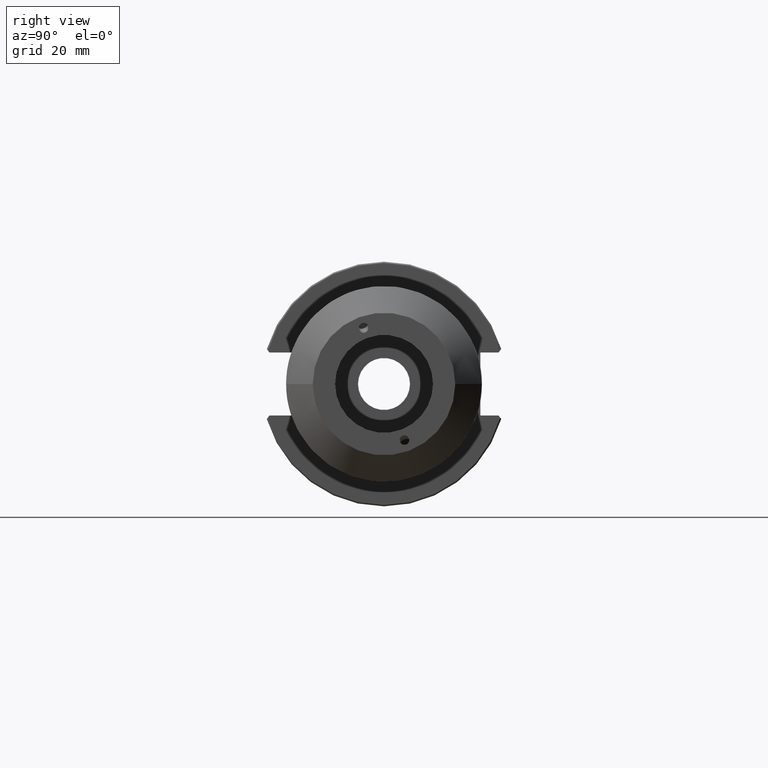
[diagram: clean part render]
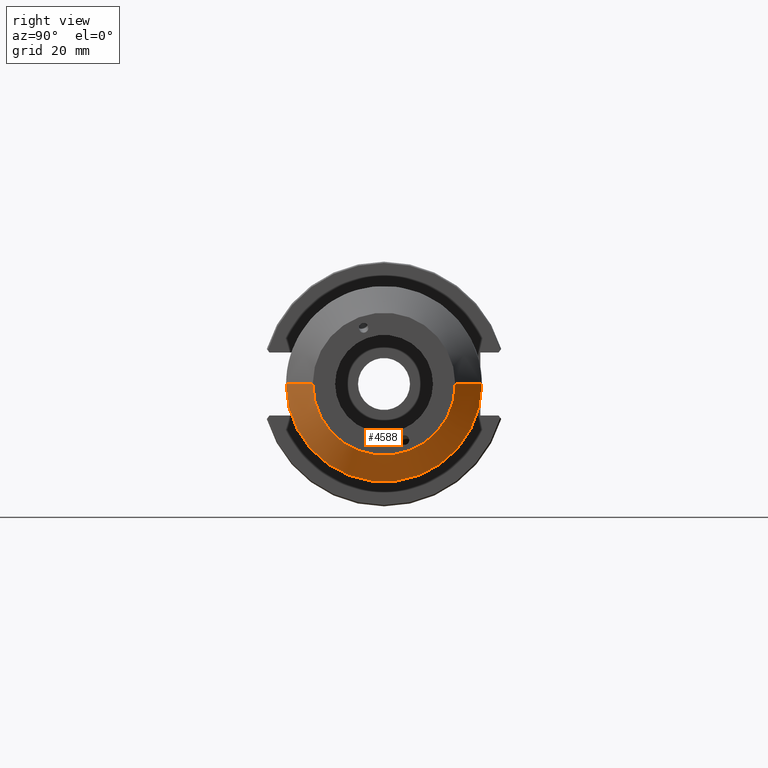
[diagram: same view with one face highlighted and labeled with its STEP entity id]
A machine part, right view. The second image highlights one B-rep face of the part: STEP entity #4588.
In plain terms, the highlighted conical surface has half-angle 45 deg.
Its self-contained STEP definition (entity closure, byte-faithful):
#1110=CARTESIAN_POINT('',(9.31E1,0.E0,0.E0));
#1111=DIRECTION('',(-1.E0,0.E0,0.E0));
#1112=DIRECTION('',(0.E0,1.E0,0.E0));
#1113=AXIS2_PLACEMENT_3D('',#1110,#1111,#1112);
#1968=DIRECTION('',(-7.071067811865E-1,7.071067811866E-1,0.E0));
#1969=VECTOR('',#1968,9.758073580374E0);
#1970=CARTESIAN_POINT('',(1.E2,1.85E1,0.E0));
#1971=LINE('',#1970,#1969);
#1972=DIRECTION('',(-7.071067811865E-1,-7.071067811866E-1,0.E0));
#1973=VECTOR('',#1972,9.758073580374E0);
#1974=CARTESIAN_POINT('',(1.E2,-1.85E1,0.E0));
#1975=LINE('',#1974,#1973);
#1976=CARTESIAN_POINT('',(1.E2,0.E0,0.E0));
#1977=DIRECTION('',(-1.E0,0.E0,0.E0));
#1978=DIRECTION('',(0.E0,1.E0,0.E0));
#1979=AXIS2_PLACEMENT_3D('',#1976,#1977,#1978);
#2602=CARTESIAN_POINT('',(1.E2,1.85E1,0.E0));
#2603=CARTESIAN_POINT('',(9.31E1,2.54E1,0.E0));
#2604=VERTEX_POINT('',#2602);
#2605=VERTEX_POINT('',#2603);
#2606=CARTESIAN_POINT('',(1.E2,-1.85E1,0.E0));
#2607=CARTESIAN_POINT('',(9.31E1,-2.54E1,0.E0));
#2608=VERTEX_POINT('',#2606);
#2609=VERTEX_POINT('',#2607);
#4574=CARTESIAN_POINT('',(9.655E1,0.E0,0.E0));
#4575=DIRECTION('',(-1.E0,0.E0,0.E0));
#4576=DIRECTION('',(0.E0,1.E0,0.E0));
#4577=AXIS2_PLACEMENT_3D('',#4574,#4575,#4576);
#4578=CONICAL_SURFACE('',#4577,2.195E1,4.5E1);
#4580=ORIENTED_EDGE('',*,*,#4579,.T.);
#4581=ORIENTED_EDGE('',*,*,#3687,.T.);
#4583=ORIENTED_EDGE('',*,*,#4582,.F.);
#4585=ORIENTED_EDGE('',*,*,#4584,.F.);
#4586=EDGE_LOOP('',(#4580,#4581,#4583,#4585));
#4587=FACE_OUTER_BOUND('',#4586,.F.);
#4588=ADVANCED_FACE('',(#4587),#4578,.T.);
#1114=CIRCLE('',#1113,2.54E1);
#1980=CIRCLE('',#1979,1.85E1);
#3687=EDGE_CURVE('',#2605,#2609,#1114,.T.);
#4579=EDGE_CURVE('',#2604,#2605,#1971,.T.);
#4582=EDGE_CURVE('',#2608,#2609,#1975,.T.);
#4584=EDGE_CURVE('',#2604,#2608,#1980,.T.);